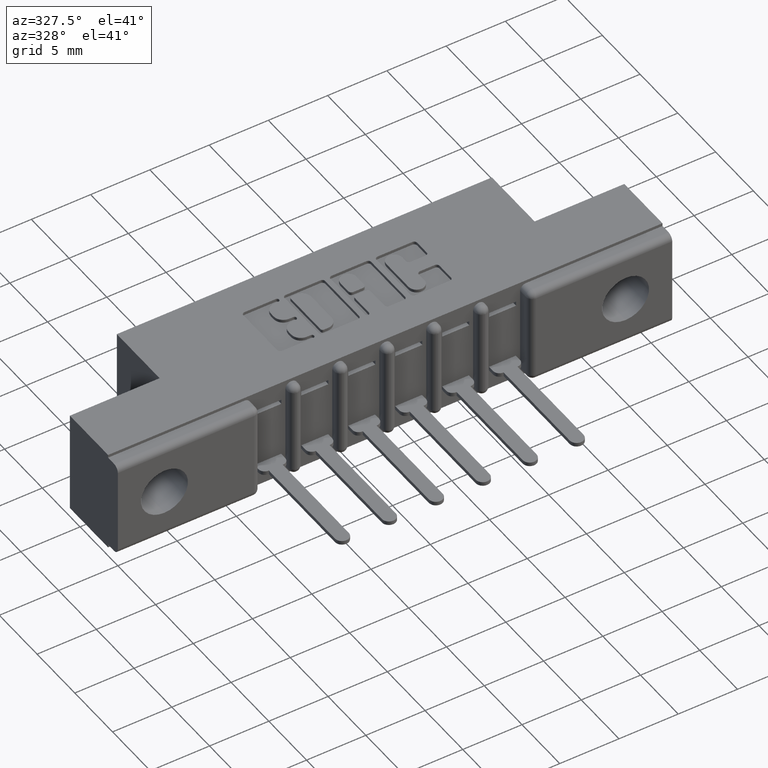
[diagram: clean part render]
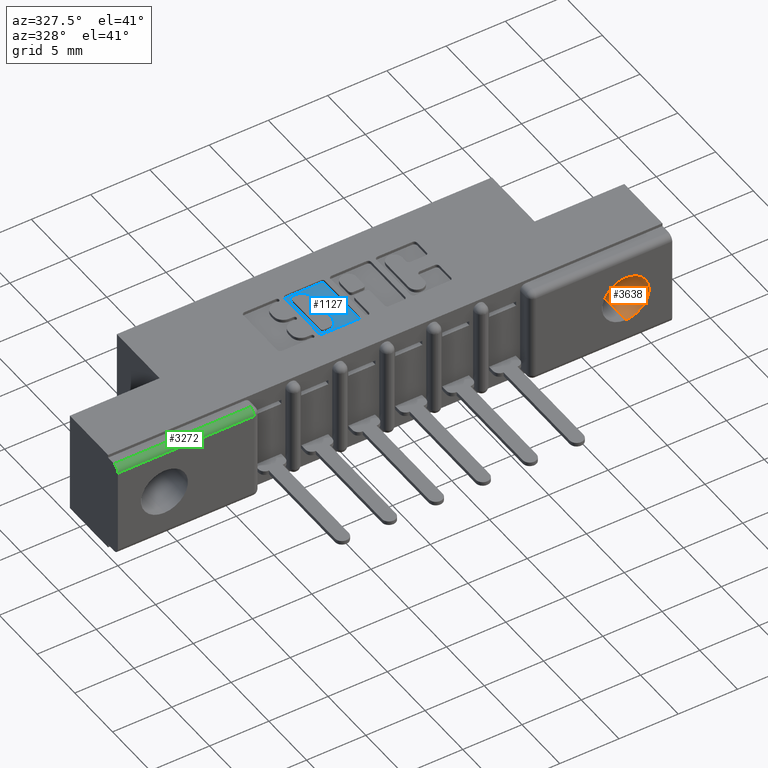
[diagram: same view with three faces highlighted in distinct colors, each labeled with its STEP entity id]
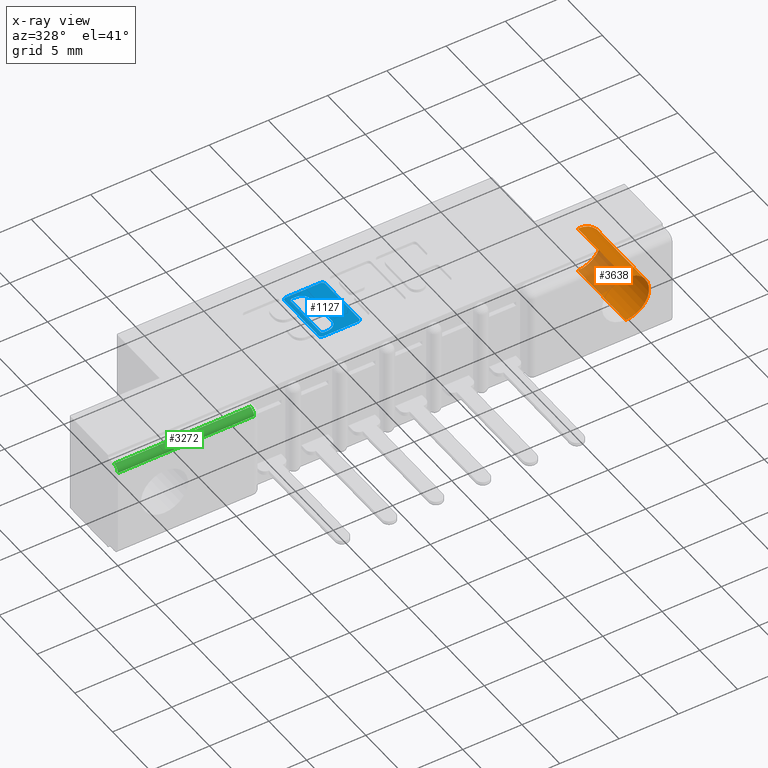
[diagram: x-ray of the same camera — body ghosted, the three highlighted faces saturated]
A machine part, auxiliary view with three faces highlighted in distinct colors.
The next image is the same camera in x-ray (body ghosted, the three faces saturated) — at least one of them is partly hidden behind the body in this view.
Their STEP definitions:

[orange] entity #3638 — the highlighted cylindrical surface (edge-blend (fillet) strip) has radius 1.9812 mm, axis along (-0, -1, -0).
#223 = CARTESIAN_POINT ( 'NONE',  ( 1.686999999999999800, 0.2499999999999999700, -0.09349999999999972200 ) ) ;
#334 = DIRECTION ( 'NONE',  ( 0.0000000000000000000, -1.000000000000000000, 0.0000000000000000000 ) ) ;
#400 = DIRECTION ( 'NONE',  ( -0.0000000000000000000, -1.000000000000000000, -0.0000000000000000000 ) ) ;
#433 = CARTESIAN_POINT ( 'NONE',  ( 1.686999999999999800, 0.4729999999999999800, -0.09349999999999972200 ) ) ;
#447 = CIRCLE ( 'NONE', #5353, 0.07800000000000008300 ) ;
#456 = EDGE_CURVE ( 'NONE', #3248, #2265, #447, .T. ) ;
#486 = VERTEX_POINT ( 'NONE', #223 ) ;
#544 = CARTESIAN_POINT ( 'NONE',  ( 1.686999999999999800, 0.0000000000000000000, -0.2494999999999998900 ) ) ;
#1131 = ORIENTED_EDGE ( 'NONE', *, *, #4052, .T. ) ;
#1289 = FACE_OUTER_BOUND ( 'NONE', #2390, .T. ) ;
#2265 = VERTEX_POINT ( 'NONE', #4866 ) ;
#2390 = EDGE_LOOP ( 'NONE', ( #7296, #1131, #5712, #8598 ) ) ;
#2648 = AXIS2_PLACEMENT_3D ( 'NONE', #4756, #6251, #7006 ) ;
#2747 = LINE ( 'NONE', #7924, #6443 ) ;
#3248 = VERTEX_POINT ( 'NONE', #544 ) ;
#3638 = ADVANCED_FACE ( 'NONE', ( #1289 ), #3948, .F. ) ;
#3948 = CYLINDRICAL_SURFACE ( 'NONE', #5862, 0.07800000000000009700 ) ;
#4022 = EDGE_CURVE ( 'NONE', #486, #2265, #7536, .T. ) ;
#4052 = EDGE_CURVE ( 'NONE', #486, #8889, #5203, .T. ) ;
#4756 = CARTESIAN_POINT ( 'NONE',  ( 1.686999999999999800, 0.2499999999999999700, -0.1714999999999997900 ) ) ;
#4786 = CARTESIAN_POINT ( 'NONE',  ( 1.686999999999999800, 0.4729999999999999800, -0.1714999999999997900 ) ) ;
#4792 = DIRECTION ( 'NONE',  ( -0.0000000000000000000, -1.000000000000000000, -0.0000000000000000000 ) ) ;
#4866 = CARTESIAN_POINT ( 'NONE',  ( 1.686999999999999800, 0.0000000000000000000, -0.09349999999999972200 ) ) ;
#5203 = CIRCLE ( 'NONE', #2648, 0.07800000000000008300 ) ;
#5353 = AXIS2_PLACEMENT_3D ( 'NONE', #7517, #334, #6860 ) ;
#5712 = ORIENTED_EDGE ( 'NONE', *, *, #6589, .T. ) ;
#5862 = AXIS2_PLACEMENT_3D ( 'NONE', #4786, #400, #6896 ) ;
#6251 = DIRECTION ( 'NONE',  ( 0.0000000000000000000, 1.000000000000000000, -0.0000000000000000000 ) ) ;
#6443 = VECTOR ( 'NONE', #8660, 39.37007874015748100 ) ;
#6505 = CARTESIAN_POINT ( 'NONE',  ( 1.686999999999999800, 0.2499999999999999700, -0.2494999999999998900 ) ) ;
#6589 = EDGE_CURVE ( 'NONE', #8889, #3248, #2747, .T. ) ;
#6860 = DIRECTION ( 'NONE',  ( 0.0000000000000000000, 0.0000000000000000000, 1.000000000000000000 ) ) ;
#6896 = DIRECTION ( 'NONE',  ( 0.0000000000000000000, 0.0000000000000000000, -1.000000000000000000 ) ) ;
#7006 = DIRECTION ( 'NONE',  ( 0.0000000000000000000, 0.0000000000000000000, 1.000000000000000000 ) ) ;
#7296 = ORIENTED_EDGE ( 'NONE', *, *, #4022, .F. ) ;
#7517 = CARTESIAN_POINT ( 'NONE',  ( 1.686999999999999800, 0.0000000000000000000, -0.1714999999999997900 ) ) ;
#7536 = LINE ( 'NONE', #433, #9035 ) ;
#7924 = CARTESIAN_POINT ( 'NONE',  ( 1.686999999999999800, 0.4729999999999999800, -0.2494999999999998900 ) ) ;
#8598 = ORIENTED_EDGE ( 'NONE', *, *, #456, .T. ) ;
#8660 = DIRECTION ( 'NONE',  ( -0.0000000000000000000, -1.000000000000000000, -0.0000000000000000000 ) ) ;
#8889 = VERTEX_POINT ( 'NONE', #6505 ) ;
#9035 = VECTOR ( 'NONE', #4792, 39.37007874015748100 ) ;

[blue] entity #1127 — the highlighted planar face has unit normal (0, 0, 1).
#21 = VERTEX_POINT ( 'NONE', #6290 ) ;
#230 = DIRECTION ( 'NONE',  ( 1.000000000000000000, 0.0000000000000000000, 0.0000000000000000000 ) ) ;
#295 = VERTEX_POINT ( 'NONE', #3601 ) ;
#438 = VERTEX_POINT ( 'NONE', #5275 ) ;
#601 = LINE ( 'NONE', #3108, #1847 ) ;
#735 = EDGE_CURVE ( 'NONE', #8957, #1644, #4233, .T. ) ;
#770 = VECTOR ( 'NONE', #4263, 39.37007874015748100 ) ;
#777 = VERTEX_POINT ( 'NONE', #8643 ) ;
#813 = CARTESIAN_POINT ( 'NONE',  ( 0.9124112885716693100, 0.1736589681657899100, -0.01000000000000000000 ) ) ;
#837 = VERTEX_POINT ( 'NONE', #8672 ) ;
#949 = DIRECTION ( 'NONE',  ( 1.000000000000000000, 0.0000000000000000000, 0.0000000000000000000 ) ) ;
#1016 = CARTESIAN_POINT ( 'NONE',  ( 0.7867707099629762700, 0.1736589681657899100, -0.01000000000000000000 ) ) ;
#1109 = FACE_OUTER_BOUND ( 'NONE', #1711, .T. ) ;
#1127 = ADVANCED_FACE ( 'NONE', ( #8500, #1109 ), #7101, .T. ) ;
#1198 = EDGE_CURVE ( 'NONE', #777, #8606, #2383, .T. ) ;
#1222 = CIRCLE ( 'NONE', #9094, 0.009815670203806891800 ) ;
#1264 = ORIENTED_EDGE ( 'NONE', *, *, #6332, .F. ) ;
#1296 = CARTESIAN_POINT ( 'NONE',  ( 0.7769550397591695700, 0.3503410318342100000, -0.01000000000000000000 ) ) ;
#1368 = DIRECTION ( 'NONE',  ( -0.0000000000000000000, 0.0000000000000000000, 1.000000000000000000 ) ) ;
#1392 = ORIENTED_EDGE ( 'NONE', *, *, #3006, .T. ) ;
#1490 = EDGE_CURVE ( 'NONE', #4341, #8606, #2145, .T. ) ;
#1644 = VERTEX_POINT ( 'NONE', #1296 ) ;
#1658 = CARTESIAN_POINT ( 'NONE',  ( 0.7975679471871667300, 0.3395437946100566300, -0.01000000000000000000 ) ) ;
#1683 = EDGE_CURVE ( 'NONE', #4623, #837, #3284, .T. ) ;
#1711 = EDGE_LOOP ( 'NONE', ( #2364, #1859, #2581, #7460, #2478, #1392, #6410, #6996 ) ) ;
#1722 = EDGE_CURVE ( 'NONE', #9446, #4919, #4896, .T. ) ;
#1764 = EDGE_CURVE ( 'NONE', #1644, #438, #8958, .T. ) ;
#1776 = DIRECTION ( 'NONE',  ( 1.000000000000000000, 0.0000000000000000000, 0.0000000000000000000 ) ) ;
#1847 = VECTOR ( 'NONE', #3140, 39.37007874015748100 ) ;
#1859 = ORIENTED_EDGE ( 'NONE', *, *, #1683, .T. ) ;
#1917 = CARTESIAN_POINT ( 'NONE',  ( 0.9124112885716693100, 0.3503410318342100000, -0.01000000000000000000 ) ) ;
#1939 = CIRCLE ( 'NONE', #3519, 0.03141014465217194900 ) ;
#2039 = VECTOR ( 'NONE', #7574, 39.37007874015748100 ) ;
#2058 = CARTESIAN_POINT ( 'NONE',  ( 0.8432108136348439600, 0.0000000000000000000, -0.01000000000000000000 ) ) ;
#2145 = LINE ( 'NONE', #8251, #2039 ) ;
#2364 = ORIENTED_EDGE ( 'NONE', *, *, #8394, .T. ) ;
#2383 = CIRCLE ( 'NONE', #7785, 0.006870969142667693000 ) ;
#2394 = AXIS2_PLACEMENT_3D ( 'NONE', #1016, #6169, #5492 ) ;
#2457 = CARTESIAN_POINT ( 'NONE',  ( 0.8432108136348439600, 0.2089953808994844400, -0.01000000000000000000 ) ) ;
#2478 = ORIENTED_EDGE ( 'NONE', *, *, #1764, .T. ) ;
#2575 = LINE ( 'NONE', #8243, #3489 ) ;
#2578 = VERTEX_POINT ( 'NONE', #8040 ) ;
#2581 = ORIENTED_EDGE ( 'NONE', *, *, #4909, .T. ) ;
#2582 = CIRCLE ( 'NONE', #9037, 0.006870969142663185300 ) ;
#2680 = DIRECTION ( 'NONE',  ( 1.000000000000000000, 0.0000000000000000000, 0.0000000000000000000 ) ) ;
#2874 = EDGE_CURVE ( 'NONE', #7667, #295, #2575, .T. ) ;
#2891 = CARTESIAN_POINT ( 'NONE',  ( 0.7867707099630104600, 0.3601567020380510000, -0.01000000000000000000 ) ) ;
#2915 = LINE ( 'NONE', #6424, #9281 ) ;
#2972 = ORIENTED_EDGE ( 'NONE', *, *, #1198, .F. ) ;
#3006 = EDGE_CURVE ( 'NONE', #438, #3376, #4171, .T. ) ;
#3085 = DIRECTION ( 'NONE',  ( -0.0000000000000000000, 0.0000000000000000000, 1.000000000000000000 ) ) ;
#3108 = CARTESIAN_POINT ( 'NONE',  ( 0.0000000000000000000, 0.3601567020380510000, -0.01000000000000000000 ) ) ;
#3140 = DIRECTION ( 'NONE',  ( -1.000000000000000000, 0.0000000000000000000, 0.0000000000000000000 ) ) ;
#3165 = CARTESIAN_POINT ( 'NONE',  ( 0.0000000000000000000, 0.3464147637527244000, -0.01000000000000000000 ) ) ;
#3203 = CARTESIAN_POINT ( 'NONE',  ( 0.7906969780444990100, 0.1844562053899774200, -0.01000000000000000000 ) ) ;
#3284 = CIRCLE ( 'NONE', #6115, 0.009815670203841039800 ) ;
#3376 = VERTEX_POINT ( 'NONE', #5222 ) ;
#3489 = VECTOR ( 'NONE', #4557, 39.37007874015748100 ) ;
#3512 = EDGE_LOOP ( 'NONE', ( #2972, #3611, #1264, #5169, #9470, #6463, #4350, #8463 ) ) ;
#3519 = AXIS2_PLACEMENT_3D ( 'NONE', #5347, #8522, #4219 ) ;
#3601 = CARTESIAN_POINT ( 'NONE',  ( 0.7975679471871622800, 0.1775852362473141800, -0.01000000000000000000 ) ) ;
#3611 = ORIENTED_EDGE ( 'NONE', *, *, #6256, .T. ) ;
#3833 = LINE ( 'NONE', #6596, #7546 ) ;
#4005 = CARTESIAN_POINT ( 'NONE',  ( 0.7906969780444990100, 0.3395437946100566300, -0.01000000000000000000 ) ) ;
#4090 = EDGE_CURVE ( 'NONE', #3376, #21, #2915, .T. ) ;
#4171 = CIRCLE ( 'NONE', #2394, 0.009815670203806754800 ) ;
#4219 = DIRECTION ( 'NONE',  ( 1.000000000000000000, 0.0000000000000000000, 0.0000000000000000000 ) ) ;
#4233 = CIRCLE ( 'NONE', #8652, 0.009815670203840902800 ) ;
#4263 = DIRECTION ( 'NONE',  ( 0.0000000000000000000, -1.000000000000000000, 0.0000000000000000000 ) ) ;
#4341 = VERTEX_POINT ( 'NONE', #3203 ) ;
#4350 = ORIENTED_EDGE ( 'NONE', *, *, #8425, .F. ) ;
#4487 = DIRECTION ( 'NONE',  ( -0.0000000000000000000, 0.0000000000000000000, 1.000000000000000000 ) ) ;
#4546 = CARTESIAN_POINT ( 'NONE',  ( 0.9025956183678624000, 0.1736589681657899100, -0.01000000000000000000 ) ) ;
#4557 = DIRECTION ( 'NONE',  ( -1.000000000000000000, 0.0000000000000000000, 0.0000000000000000000 ) ) ;
#4623 = VERTEX_POINT ( 'NONE', #1917 ) ;
#4663 = DIRECTION ( 'NONE',  ( 1.000000000000000000, 0.0000000000000000000, 0.0000000000000000000 ) ) ;
#4753 = CIRCLE ( 'NONE', #7054, 0.03141014465217017300 ) ;
#4754 = CARTESIAN_POINT ( 'NONE',  ( 0.0000000000000000000, 0.0000000000000000000, -0.01000000000000000000 ) ) ;
#4791 = DIRECTION ( 'NONE',  ( 1.000000000000000000, 0.0000000000000000000, 0.0000000000000000000 ) ) ;
#4896 = LINE ( 'NONE', #2058, #770 ) ;
#4909 = EDGE_CURVE ( 'NONE', #837, #8957, #601, .T. ) ;
#4919 = VERTEX_POINT ( 'NONE', #2457 ) ;
#5048 = CARTESIAN_POINT ( 'NONE',  ( 0.7867707099630104600, 0.3503410318342100000, -0.01000000000000000000 ) ) ;
#5169 = ORIENTED_EDGE ( 'NONE', *, *, #1722, .T. ) ;
#5222 = CARTESIAN_POINT ( 'NONE',  ( 0.7867707099629762700, 0.1638432979619831300, -0.01000000000000000000 ) ) ;
#5275 = CARTESIAN_POINT ( 'NONE',  ( 0.7769550397591695700, 0.1736589681657899100, -0.01000000000000000000 ) ) ;
#5319 = DIRECTION ( 'NONE',  ( 0.0000000000000000000, 1.000000000000000000, -0.0000000000000000000 ) ) ;
#5347 = CARTESIAN_POINT ( 'NONE',  ( 0.8118006689826720000, 0.3150046191005524400, -0.01000000000000000000 ) ) ;
#5492 = DIRECTION ( 'NONE',  ( 1.000000000000000000, 0.0000000000000000000, 0.0000000000000000000 ) ) ;
#5661 = CARTESIAN_POINT ( 'NONE',  ( 0.7769550397591695700, 0.0000000000000000000, -0.01000000000000000000 ) ) ;
#6115 = AXIS2_PLACEMENT_3D ( 'NONE', #7826, #7182, #7154 ) ;
#6169 = DIRECTION ( 'NONE',  ( -0.0000000000000000000, 0.0000000000000000000, 1.000000000000000000 ) ) ;
#6256 = EDGE_CURVE ( 'NONE', #777, #2578, #8524, .T. ) ;
#6290 = CARTESIAN_POINT ( 'NONE',  ( 0.9025956183678624000, 0.1638432979619831300, -0.01000000000000000000 ) ) ;
#6332 = EDGE_CURVE ( 'NONE', #9446, #2578, #1939, .T. ) ;
#6410 = ORIENTED_EDGE ( 'NONE', *, *, #4090, .T. ) ;
#6424 = CARTESIAN_POINT ( 'NONE',  ( 0.0000000000000000000, 0.1638432979619831300, -0.01000000000000000000 ) ) ;
#6463 = ORIENTED_EDGE ( 'NONE', *, *, #2874, .T. ) ;
#6596 = CARTESIAN_POINT ( 'NONE',  ( 0.9124112885716693100, 0.0000000000000000000, -0.01000000000000000000 ) ) ;
#6760 = EDGE_CURVE ( 'NONE', #21, #8142, #1222, .T. ) ;
#6776 = DIRECTION ( 'NONE',  ( -0.0000000000000000000, 0.0000000000000000000, 1.000000000000000000 ) ) ;
#6813 = CARTESIAN_POINT ( 'NONE',  ( 0.8118006689826737800, 0.2089953808994844400, -0.01000000000000000000 ) ) ;
#6987 = VECTOR ( 'NONE', #7082, 39.37007874015748100 ) ;
#6996 = ORIENTED_EDGE ( 'NONE', *, *, #6760, .T. ) ;
#7054 = AXIS2_PLACEMENT_3D ( 'NONE', #6813, #3085, #1776 ) ;
#7082 = DIRECTION ( 'NONE',  ( 0.0000000000000000000, -1.000000000000000000, 0.0000000000000000000 ) ) ;
#7101 = PLANE ( 'NONE',  #9477 ) ;
#7154 = DIRECTION ( 'NONE',  ( 1.000000000000000000, 0.0000000000000000000, 0.0000000000000000000 ) ) ;
#7182 = DIRECTION ( 'NONE',  ( -0.0000000000000000000, 0.0000000000000000000, 1.000000000000000000 ) ) ;
#7460 = ORIENTED_EDGE ( 'NONE', *, *, #735, .T. ) ;
#7546 = VECTOR ( 'NONE', #5319, 39.37007874015748100 ) ;
#7574 = DIRECTION ( 'NONE',  ( 0.0000000000000000000, 1.000000000000000000, -0.0000000000000000000 ) ) ;
#7584 = DIRECTION ( 'NONE',  ( -0.0000000000000000000, 0.0000000000000000000, 1.000000000000000000 ) ) ;
#7667 = VERTEX_POINT ( 'NONE', #8160 ) ;
#7716 = VECTOR ( 'NONE', #230, 39.37007874015748100 ) ;
#7785 = AXIS2_PLACEMENT_3D ( 'NONE', #1658, #7584, #9128 ) ;
#7826 = CARTESIAN_POINT ( 'NONE',  ( 0.9025956183678282000, 0.3503410318342098900, -0.01000000000000000000 ) ) ;
#7936 = DIRECTION ( 'NONE',  ( 1.000000000000000000, 0.0000000000000000000, 0.0000000000000000000 ) ) ;
#8040 = CARTESIAN_POINT ( 'NONE',  ( 0.8118006689826782200, 0.3464147637527244000, -0.01000000000000000000 ) ) ;
#8142 = VERTEX_POINT ( 'NONE', #813 ) ;
#8160 = CARTESIAN_POINT ( 'NONE',  ( 0.8118006689826737800, 0.1775852362473141800, -0.01000000000000000000 ) ) ;
#8243 = CARTESIAN_POINT ( 'NONE',  ( 0.0000000000000000000, 0.1775852362473141800, -0.01000000000000000000 ) ) ;
#8251 = CARTESIAN_POINT ( 'NONE',  ( 0.7906969780444990100, 0.0000000000000000000, -0.01000000000000000000 ) ) ;
#8394 = EDGE_CURVE ( 'NONE', #8142, #4623, #3833, .T. ) ;
#8425 = EDGE_CURVE ( 'NONE', #4341, #295, #2582, .T. ) ;
#8463 = ORIENTED_EDGE ( 'NONE', *, *, #1490, .T. ) ;
#8498 = EDGE_CURVE ( 'NONE', #7667, #4919, #4753, .T. ) ;
#8500 = FACE_BOUND ( 'NONE', #3512, .T. ) ;
#8522 = DIRECTION ( 'NONE',  ( -0.0000000000000000000, 0.0000000000000000000, 1.000000000000000000 ) ) ;
#8524 = LINE ( 'NONE', #3165, #7716 ) ;
#8606 = VERTEX_POINT ( 'NONE', #4005 ) ;
#8643 = CARTESIAN_POINT ( 'NONE',  ( 0.7975679471871667300, 0.3464147637527244000, -0.01000000000000000000 ) ) ;
#8652 = AXIS2_PLACEMENT_3D ( 'NONE', #5048, #1368, #7936 ) ;
#8672 = CARTESIAN_POINT ( 'NONE',  ( 0.9025956183678963700, 0.3601567020380510000, -0.01000000000000000000 ) ) ;
#8957 = VERTEX_POINT ( 'NONE', #2891 ) ;
#8958 = LINE ( 'NONE', #5661, #6987 ) ;
#9021 = CARTESIAN_POINT ( 'NONE',  ( 0.7975679471871622800, 0.1844562053899774200, -0.01000000000000000000 ) ) ;
#9037 = AXIS2_PLACEMENT_3D ( 'NONE', #9021, #4487, #949 ) ;
#9094 = AXIS2_PLACEMENT_3D ( 'NONE', #4546, #6776, #4663 ) ;
#9128 = DIRECTION ( 'NONE',  ( 1.000000000000000000, 0.0000000000000000000, 0.0000000000000000000 ) ) ;
#9279 = DIRECTION ( 'NONE',  ( -0.0000000000000000000, 0.0000000000000000000, 1.000000000000000000 ) ) ;
#9281 = VECTOR ( 'NONE', #2680, 39.37007874015748100 ) ;
#9319 = CARTESIAN_POINT ( 'NONE',  ( 0.8432108136348439600, 0.3150046191005524400, -0.01000000000000000000 ) ) ;
#9446 = VERTEX_POINT ( 'NONE', #9319 ) ;
#9470 = ORIENTED_EDGE ( 'NONE', *, *, #8498, .F. ) ;
#9477 = AXIS2_PLACEMENT_3D ( 'NONE', #4754, #9279, #4791 ) ;

[green] entity #3272 — the highlighted cylindrical surface (edge-blend (fillet) strip) has radius 0.508 mm, axis along (-1, 0, 0).
#656 = CARTESIAN_POINT ( 'NONE',  ( 1.083812417245411700E-017, 0.0000000000000000000, -0.02999999999999996100 ) ) ;
#677 = ORIENTED_EDGE ( 'NONE', *, *, #5790, .F. ) ;
#826 = VERTEX_POINT ( 'NONE', #9359 ) ;
#1187 = VERTEX_POINT ( 'NONE', #8520 ) ;
#1220 = CARTESIAN_POINT ( 'NONE',  ( 0.4529999999999999000, 0.0000000000000000000, -0.02999999999999997100 ) ) ;
#1383 = DIRECTION ( 'NONE',  ( 0.0000000000000000000, 0.0000000000000000000, 1.000000000000000000 ) ) ;
#1430 = ORIENTED_EDGE ( 'NONE', *, *, #8540, .T. ) ;
#1497 = DIRECTION ( 'NONE',  ( -1.000000000000000000, -0.0000000000000000000, 0.0000000000000000000 ) ) ;
#2418 = VERTEX_POINT ( 'NONE', #1220 ) ;
#2983 = VECTOR ( 'NONE', #8987, 39.37007874015748100 ) ;
#3173 = DIRECTION ( 'NONE',  ( 0.0000000000000000000, 0.0000000000000000000, 1.000000000000000000 ) ) ;
#3272 = ADVANCED_FACE ( 'NONE', ( #4871 ), #8576, .T. ) ;
#3559 = CARTESIAN_POINT ( 'NONE',  ( 0.0000000000000000000, 0.02000000000000000000, -0.02999999999999996100 ) ) ;
#3609 = CIRCLE ( 'NONE', #6681, 0.02000000000000000000 ) ;
#4417 = EDGE_LOOP ( 'NONE', ( #677, #7171, #1430, #5855 ) ) ;
#4452 = CARTESIAN_POINT ( 'NONE',  ( 1.083812417245411700E-017, 0.02000000000000000000, -0.009999999999999962000 ) ) ;
#4646 = CARTESIAN_POINT ( 'NONE',  ( 0.4530000000000003500, 0.02000000000000000000, -0.02999999999999997100 ) ) ;
#4840 = VERTEX_POINT ( 'NONE', #4452 ) ;
#4871 = FACE_OUTER_BOUND ( 'NONE', #4417, .T. ) ;
#5388 = LINE ( 'NONE', #8234, #2983 ) ;
#5491 = DIRECTION ( 'NONE',  ( -1.000000000000000000, 0.0000000000000000000, 0.0000000000000000000 ) ) ;
#5770 = DIRECTION ( 'NONE',  ( 0.0000000000000000000, 0.0000000000000000000, -1.000000000000000000 ) ) ;
#5789 = DIRECTION ( 'NONE',  ( -1.000000000000000000, 0.0000000000000000000, 0.0000000000000000000 ) ) ;
#5790 = EDGE_CURVE ( 'NONE', #826, #4840, #7836, .T. ) ;
#5855 = ORIENTED_EDGE ( 'NONE', *, *, #6321, .F. ) ;
#5875 = AXIS2_PLACEMENT_3D ( 'NONE', #3559, #8748, #5770 ) ;
#6321 = EDGE_CURVE ( 'NONE', #4840, #1187, #5388, .T. ) ;
#6681 = AXIS2_PLACEMENT_3D ( 'NONE', #4646, #5491, #3173 ) ;
#7171 = ORIENTED_EDGE ( 'NONE', *, *, #8808, .F. ) ;
#7309 = CARTESIAN_POINT ( 'NONE',  ( 0.0000000000000000000, 0.02000000000000000000, -0.02999999999999996100 ) ) ;
#7833 = AXIS2_PLACEMENT_3D ( 'NONE', #7309, #5789, #1383 ) ;
#7836 = CIRCLE ( 'NONE', #5875, 0.02000000000000000000 ) ;
#8228 = VECTOR ( 'NONE', #1497, 39.37007874015748100 ) ;
#8234 = CARTESIAN_POINT ( 'NONE',  ( 0.4530000000000003500, 0.02000000000000000000, -0.009999999999999962000 ) ) ;
#8520 = CARTESIAN_POINT ( 'NONE',  ( 0.4530000000000003500, 0.02000000000000000000, -0.009999999999999962000 ) ) ;
#8540 = EDGE_CURVE ( 'NONE', #2418, #1187, #3609, .T. ) ;
#8576 = CYLINDRICAL_SURFACE ( 'NONE', #7833, 0.02000000000000000000 ) ;
#8748 = DIRECTION ( 'NONE',  ( -1.000000000000000000, 0.0000000000000000000, -0.0000000000000000000 ) ) ;
#8808 = EDGE_CURVE ( 'NONE', #2418, #826, #9039, .T. ) ;
#8987 = DIRECTION ( 'NONE',  ( 1.000000000000000000, 0.0000000000000000000, 0.0000000000000000000 ) ) ;
#9039 = LINE ( 'NONE', #656, #8228 ) ;
#9359 = CARTESIAN_POINT ( 'NONE',  ( 0.0000000000000000000, 0.0000000000000000000, -0.02999999999999996100 ) ) ;